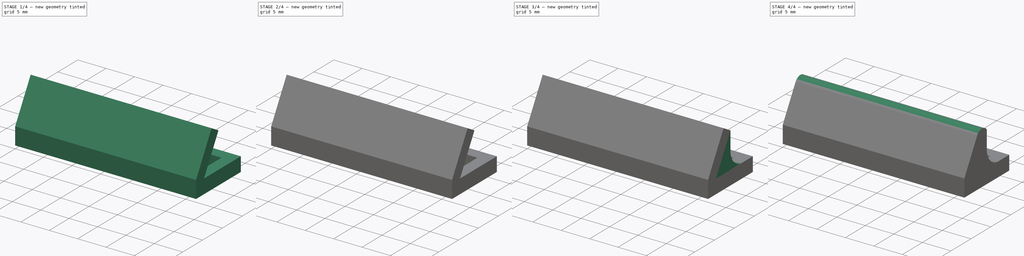
[diagram: build sequence overview — one tinted view per stage of 4, left to right]
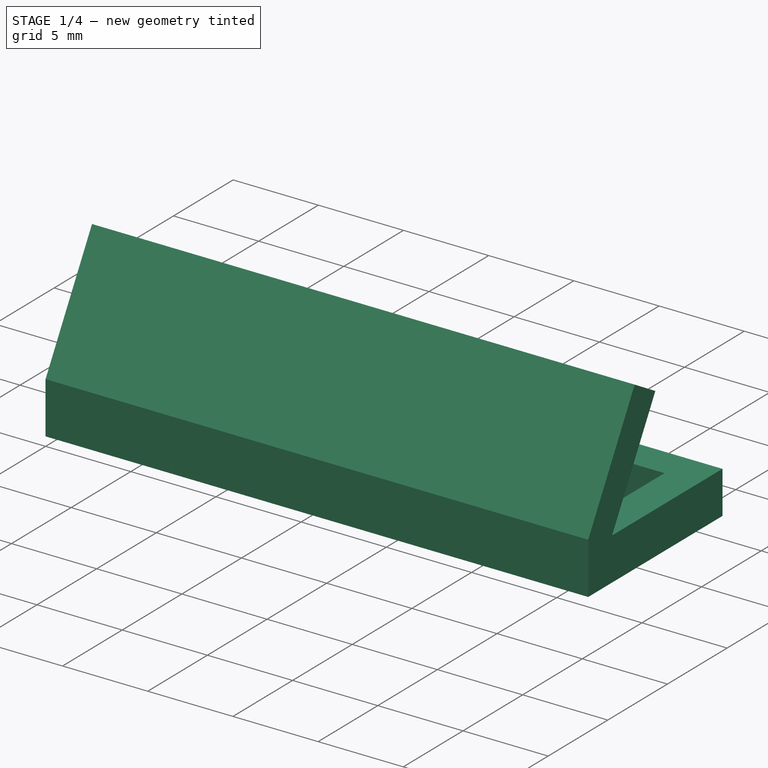
[diagram: stage 1 of 4 — iso view after this stage's code; geometry added in this stage tinted green]
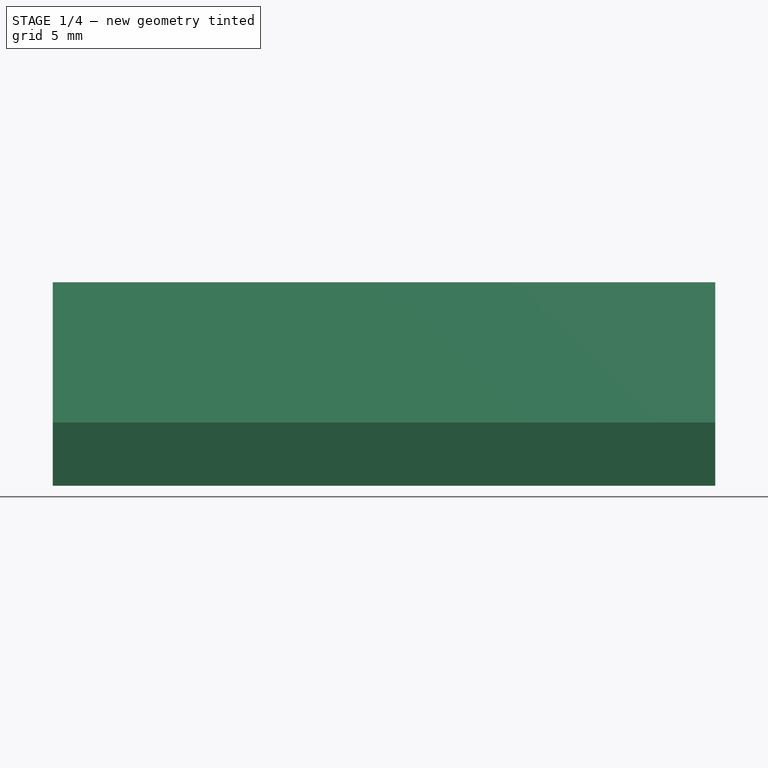
[diagram: stage 1 of 4 — front view after this stage's code; geometry added in this stage tinted green]
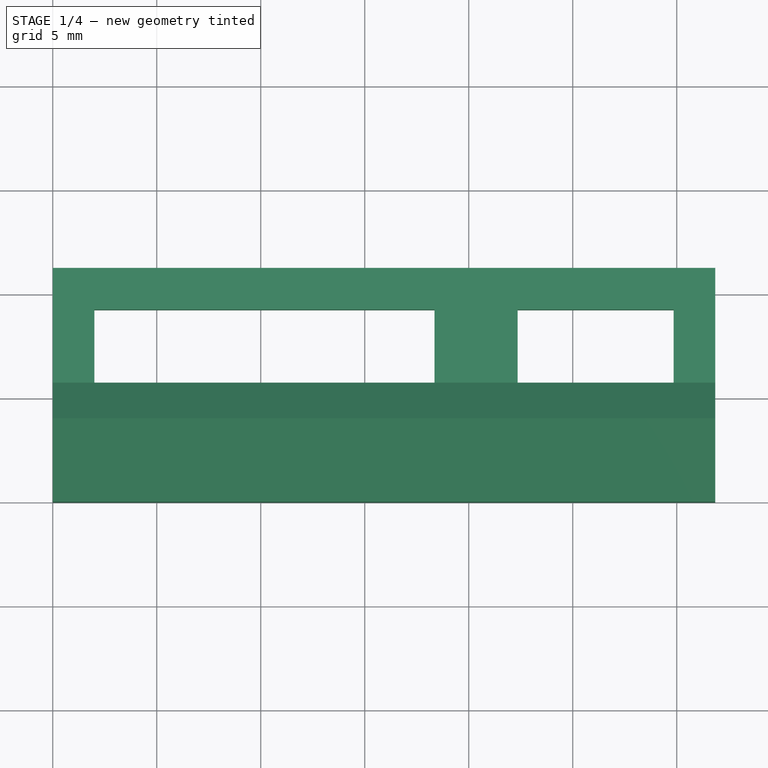
[diagram: stage 1 of 4 — top view after this stage's code; geometry added in this stage tinted green]
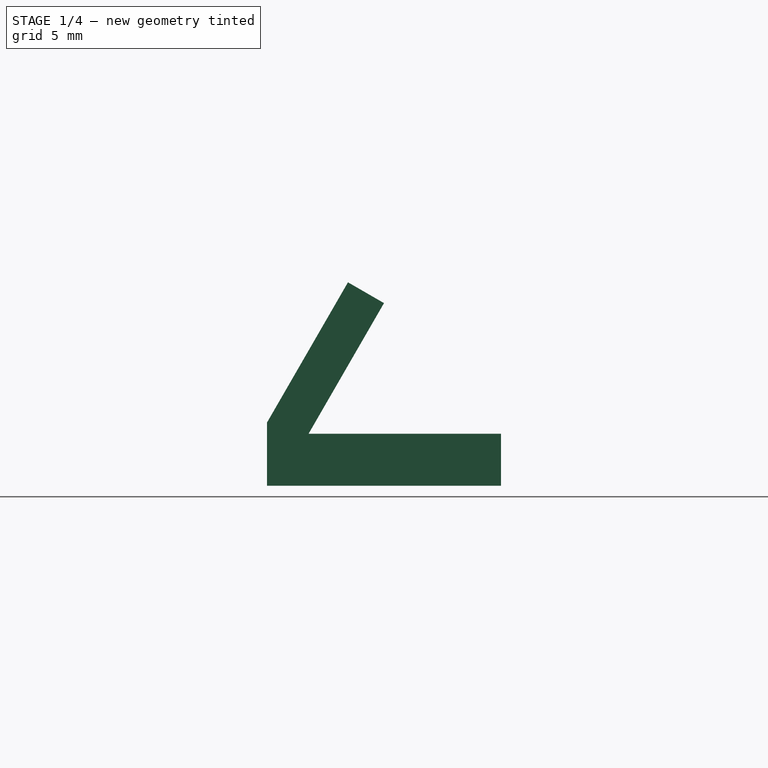
[diagram: stage 1 of 4 — right view after this stage's code; geometry added in this stage tinted green]
FCSTD DOCUMENT  (FreeCAD 0.17R13522 (Git))
Label: Visera sensor de distancia
License: All rights reserved
LicenseURL: http://en.wikipedia.org/wiki/All_rights_reserved
objects: Sketcher::SketchObject×5, PartDesign::Pad×5, PartDesign::Fillet×4, Part::Feature×1
note: 20 computed .brp shape members not serialized (recipe doc carries the construction recipe); baked Part::Feature solids carry a one-line shape summary decoded from their .brp

FEATURE [Sketcher::SketchObject] Sketch
  MapMode = 5
  sketch-geometry (18):
    g0: LineSegment StartX=0 StartY=0 StartZ=0 EndX=31.85 EndY=0 EndZ=0
    g1: LineSegment StartX=31.85 StartY=0 StartZ=0 EndX=31.85 EndY=11.25 EndZ=0
    g2: LineSegment StartX=31.85 StartY=11.25 StartZ=0 EndX=0 EndY=11.25 EndZ=0
    g3: LineSegment StartX=0 StartY=11.25 StartZ=0 EndX=0 EndY=0 EndZ=0
    g4: LineSegment StartX=2 StartY=9.25 StartZ=0 EndX=18.35 EndY=9.25 EndZ=0
    g5: LineSegment StartX=18.35 StartY=9.25 StartZ=0 EndX=18.35 EndY=2 EndZ=0
    g6: LineSegment StartX=18.35 StartY=2 StartZ=0 EndX=2 EndY=2 EndZ=0
    g7: LineSegment StartX=2 StartY=2 StartZ=0 EndX=2 EndY=9.25 EndZ=0
    g8: LineSegment StartX=22.35 StartY=9.25 StartZ=0 EndX=29.85 EndY=9.25 EndZ=0
    g9: LineSegment StartX=29.85 StartY=9.25 StartZ=0 EndX=29.85 EndY=2 EndZ=0
    g10: LineSegment StartX=29.85 StartY=2 StartZ=0 EndX=22.35 EndY=2 EndZ=0
    g11: LineSegment StartX=22.35 StartY=2 StartZ=0 EndX=22.35 EndY=9.25 EndZ=0
    g12: LineSegment [constr] StartX=18.35 StartY=9.25 StartZ=0 EndX=22.35 EndY=9.25 EndZ=0
    g13: LineSegment [constr] StartX=18.35 StartY=2 StartZ=0 EndX=22.35 EndY=2 EndZ=0
    g14: LineSegment [constr] StartX=2 StartY=2 StartZ=0 EndX=0 EndY=2 EndZ=0
    g15: LineSegment [constr] StartX=2 StartY=9.25 StartZ=0 EndX=2 EndY=11.25 EndZ=0
    g16: LineSegment [constr] StartX=29.85 StartY=9.25 StartZ=0 EndX=31.85 EndY=9.25 EndZ=0
    g17: LineSegment [constr] StartX=29.85 StartY=2 StartZ=0 EndX=29.85 EndY=0 EndZ=0
  constraints (51):
    c: Coincident(g0,g1)
    c: Coincident(g1,g2)
    c: Coincident(g2,g3)
    c: Coincident(g3,g0)
    c: Horizontal(g0)
    c: Horizontal(g2)
    c: Vertical(g1)
    c: Vertical(g3)
    c: Coincident(g0,g-1)
    c: Coincident(g4,g5)
    c: Coincident(g5,g6)
    c: Coincident(g6,g7)
    c: Coincident(g7,g4)
    c: Horizontal(g4)
    c: Horizontal(g6)
    c: Vertical(g5)
    c: Vertical(g7)
    c: Coincident(g8,g9)
    c: Coincident(g9,g10)
    c: Coincident(g10,g11)
    c: Coincident(g11,g8)
    c: Horizontal(g8)
    c: Horizontal(g10)
    c: Vertical(g9)
    c: Vertical(g11)
    c: Coincident(g12,g4)
    c: Coincident(g12,g8)
    c: Horizontal(g12)
    c: Coincident(g13,g5)
    c: Coincident(g13,g10)
    c: Horizontal(g13)
    c: DistanceX(g12,g12) = 4
    c: DistanceX(g10,g10) = 7.5
    c: DistanceY(g9,g9) = 7.25
    c: DistanceX(g6,g6) = 16.35
    c: Coincident(g14,g6)
    c: PointOnObject(g14,g3)
    c: Horizontal(g14)
    c: Coincident(g15,g4)
    c: PointOnObject(g15,g2)
    c: Vertical(g15)
    c: Coincident(g16,g8)
    c: PointOnObject(g16,g1)
    c: Horizontal(g16)
    c: Coincident(g17,g9)
    c: PointOnObject(g17,g0)
    c: Vertical(g17)
    c: Equal(g15,g14)
    c: Equal(g16,g17)
    c: Equal(g16,g15)
    c: DistanceX(g14,g14) = 2
FEATURE [PartDesign::Pad] Pad
  Length = 2.5
  Length2 = 100
  Profile = -> Sketch
  Type = 0
FEATURE [Sketcher::SketchObject] Sketch001
  ExternalGeometry = -> [Pad]
  MapMode = 5
  Placement = pos=(0,0,0) rot=(0.57735,-0.57735,-0.57735;2.0944rad)
  Support = -> [Pad]
  sketch-geometry (6):
    g0: LineSegment StartX=0 StartY=2.5 StartZ=0 EndX=0 EndY=3.0359 EndZ=0
    g1: LineSegment StartX=-2 StartY=2.5 StartZ=0 EndX=-5.625 EndY=8.77868 EndZ=0
    g2: LineSegment StartX=-5.625 StartY=8.77868 StartZ=0 EndX=-3.89295 EndY=9.77868 EndZ=0
    g3: LineSegment StartX=0 StartY=3.0359 StartZ=0 EndX=-3.89295 EndY=9.77868 EndZ=0
    g4: LineSegment [constr] StartX=-5.625 StartY=8.77868 StartZ=0 EndX=-9.25 EndY=2.5 EndZ=0
    g5: LineSegment StartX=-2 StartY=2.5 StartZ=0 EndX=0 EndY=2.5 EndZ=0
  constraints (15):
    c: Coincident(g0,g-3)
    c: PointOnObject(g0,g-2)
    c: Coincident(g1,g-4)
    c: Coincident(g2,g1)
    c: Coincident(g3,g0)
    c: Coincident(g3,g2)
    c: Parallel(g1,g3)
    c: Distance(g2) = 2
    c: Angle(g1,g-3) = 1.0472
    c: Perpendicular(g1,g2)
    c: Coincident(g4,g1)
    c: Coincident(g4,g-5)
    c: Equal(g4,g1)
    c: Coincident(g5,g1)
    c: Coincident(g5,g0)
FEATURE [PartDesign::Pad] Pad001
  Length = 10
  Length2 = 100
  Profile = -> Sketch001
  Type = 3
  UpToFace = -> Pad [Face2]
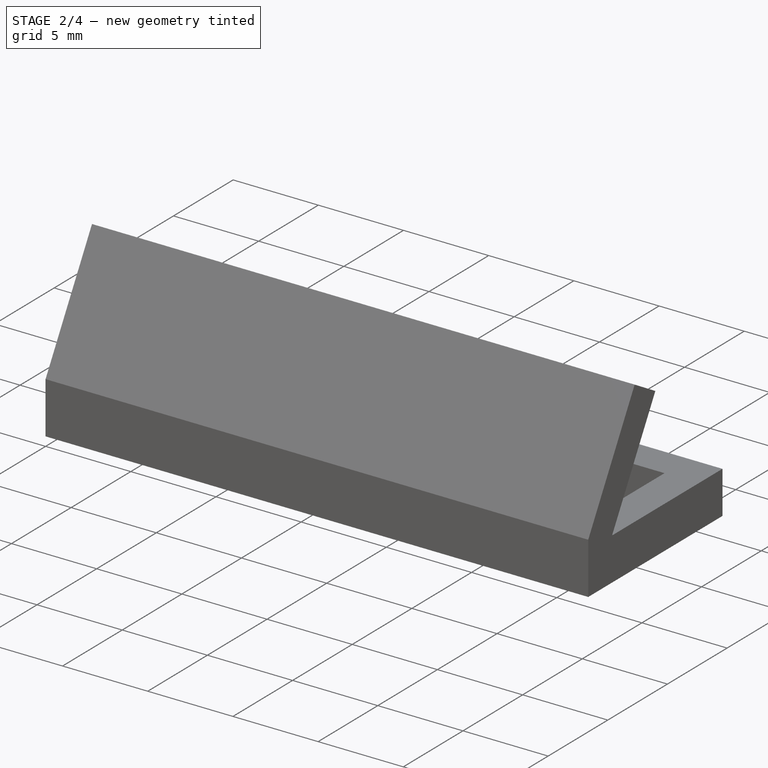
[diagram: stage 2 of 4 — iso view after this stage's code; geometry added in this stage tinted green]
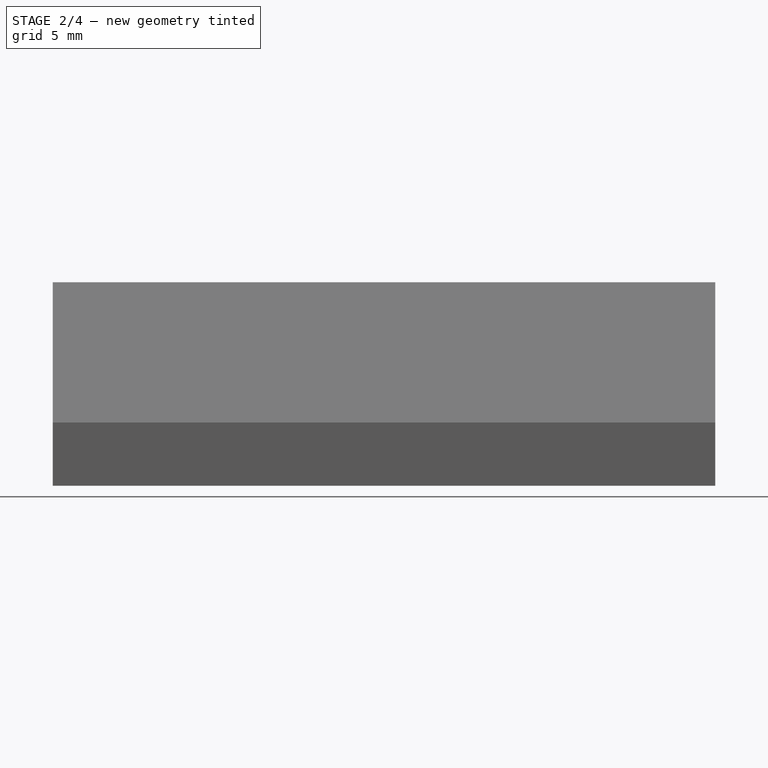
[diagram: stage 2 of 4 — front view after this stage's code; geometry added in this stage tinted green]
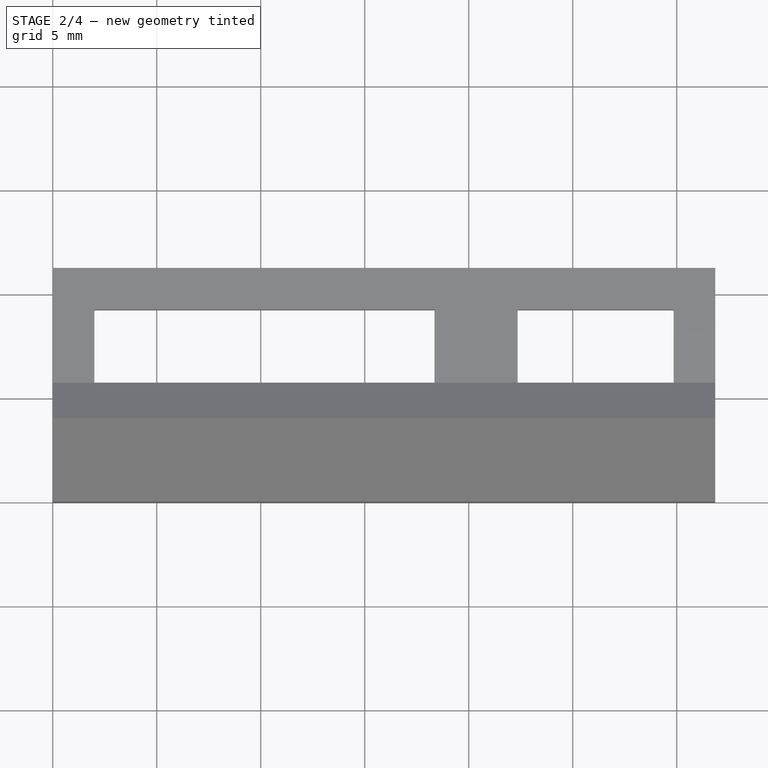
[diagram: stage 2 of 4 — top view after this stage's code; geometry added in this stage tinted green]
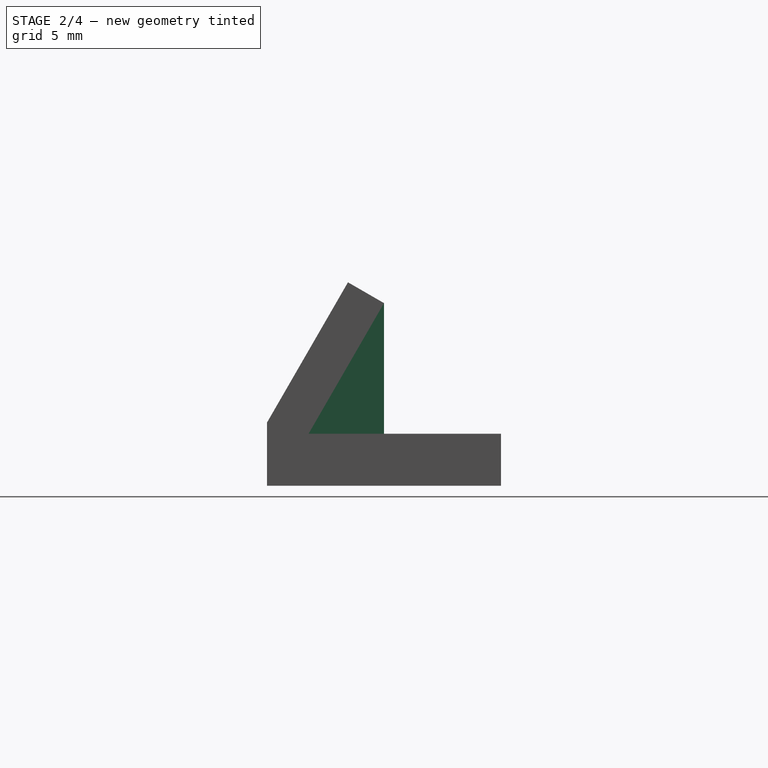
[diagram: stage 2 of 4 — right view after this stage's code; geometry added in this stage tinted green]
FEATURE [Sketcher::SketchObject] Sketch002
  ExternalGeometry = -> [Pad001]
  MapMode = 5
  Placement = pos=(0,0,0) rot=(0.57735,-0.57735,-0.57735;2.0944rad)
  Support = -> [Pad001]
  sketch-geometry (3):
    g0: LineSegment StartX=-5.625 StartY=8.77868 StartZ=0 EndX=-5.625 EndY=2.5 EndZ=0
    g1: LineSegment StartX=-5.625 StartY=8.77868 StartZ=0 EndX=-2 EndY=2.5 EndZ=0
    g2: LineSegment StartX=-2 StartY=2.5 StartZ=0 EndX=-5.625 EndY=2.5 EndZ=0
  constraints (7):
    c: Coincident(g0,g-3)
    c: PointOnObject(g0,g-4)
    c: Vertical(g0)
    c: Coincident(g1,g0)
    c: Coincident(g1,g-4)
    c: Coincident(g2,g1)
    c: Coincident(g2,g0)
FEATURE [PartDesign::Pad] Pad002
  Length = 10
  Length2 = 100
  Profile = -> Sketch002
  Type = 3
  UpToFace = -> Pad001 [Face9]
FEATURE [Sketcher::SketchObject] Sketch003
  ExternalGeometry = -> [Pad002]
  MapMode = 5
  Placement = pos=(22.35,0,0) rot=(0.57735,0.57735,0.57735;2.0944rad)
  Support = -> [Pad002]
  sketch-geometry (3):
    g0: LineSegment StartX=2 StartY=2.5 StartZ=0 EndX=5.625 EndY=2.5 EndZ=0
    g1: LineSegment StartX=5.625 StartY=2.5 StartZ=0 EndX=5.625 EndY=8.77868 EndZ=0
    g2: LineSegment StartX=5.625 StartY=8.77868 StartZ=0 EndX=2 EndY=2.5 EndZ=0
  constraints (6):
    c: Coincident(g0,g-4)
    c: Coincident(g0,g-5)
    c: Coincident(g1,g0)
    c: Coincident(g1,g-3)
    c: Coincident(g2,g1)
    c: Coincident(g2,g0)
FEATURE [PartDesign::Pad] Pad003
  Length = 10
  Length2 = 100
  Profile = -> Sketch003
  Type = 3
  UpToFace = -> Pad002 [Face7]
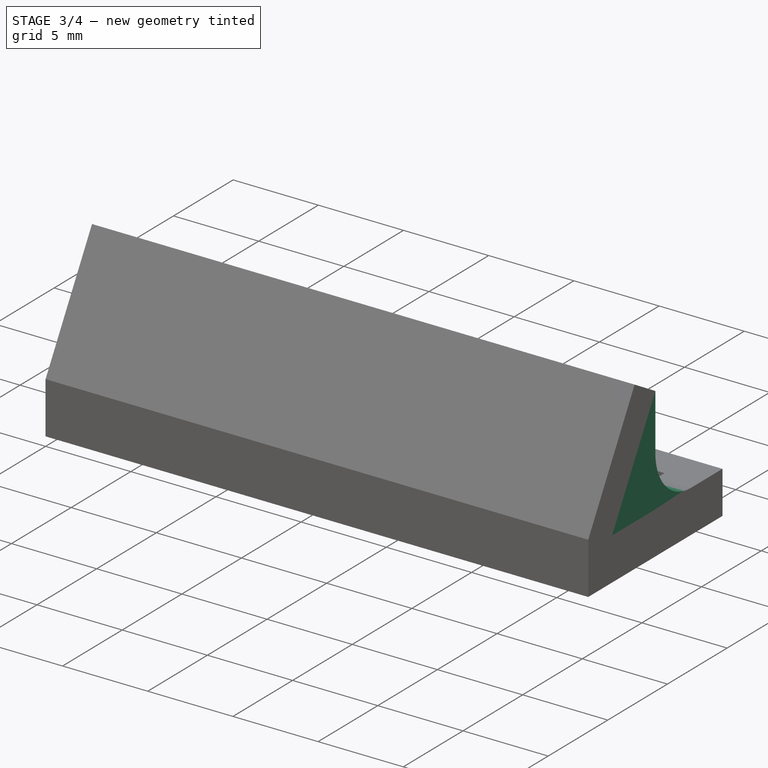
[diagram: stage 3 of 4 — iso view after this stage's code; geometry added in this stage tinted green]
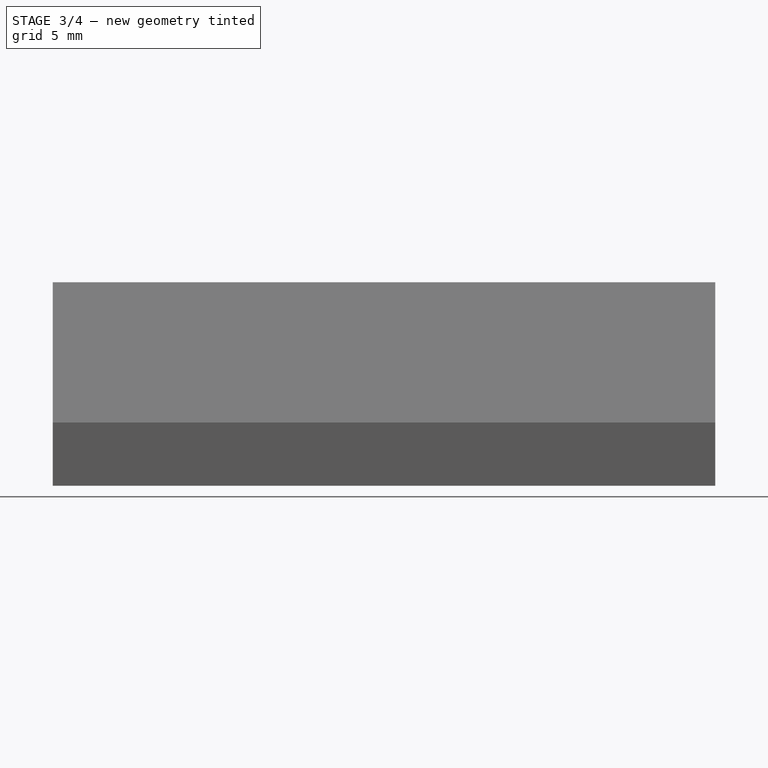
[diagram: stage 3 of 4 — front view after this stage's code; geometry added in this stage tinted green]
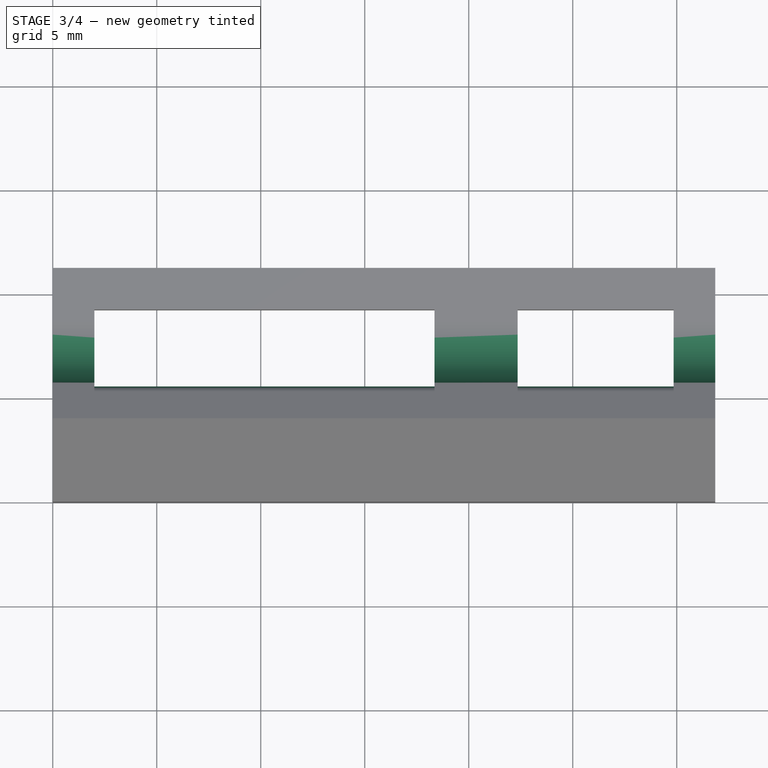
[diagram: stage 3 of 4 — top view after this stage's code; geometry added in this stage tinted green]
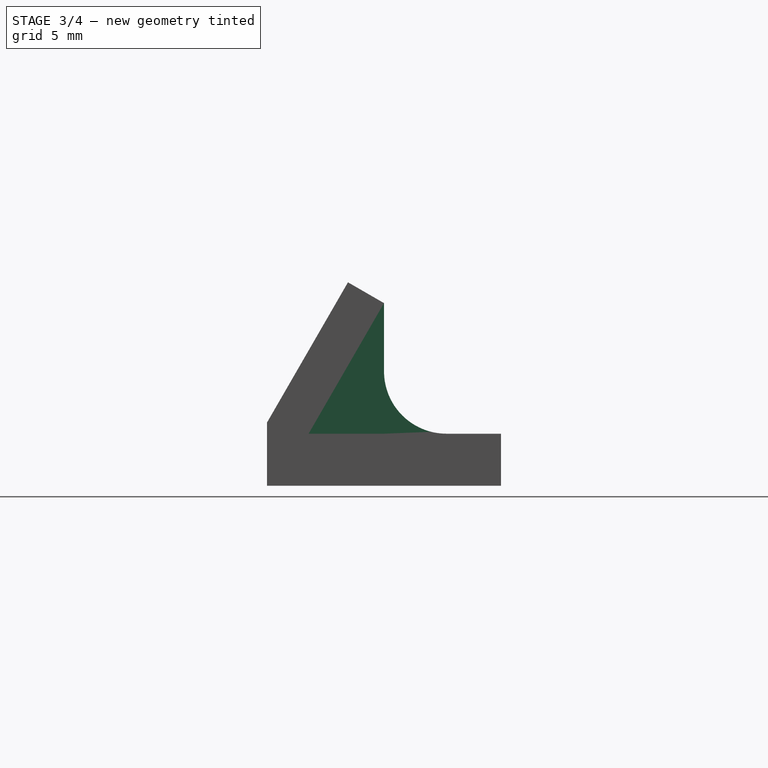
[diagram: stage 3 of 4 — right view after this stage's code; geometry added in this stage tinted green]
FEATURE [Sketcher::SketchObject] Sketch004
  ExternalGeometry = -> [Pad003]
  MapMode = 5
  Placement = pos=(31.85,0,0) rot=(0.57735,0.57735,0.57735;2.0944rad)
  Support = -> [Pad003]
  sketch-geometry (3):
    g0: LineSegment StartX=2 StartY=2.5 StartZ=0 EndX=5.625 EndY=2.5 EndZ=0
    g1: LineSegment StartX=5.625 StartY=2.5 StartZ=0 EndX=5.625 EndY=8.77868 EndZ=0
    g2: LineSegment StartX=5.625 StartY=8.77868 StartZ=0 EndX=2 EndY=2.5 EndZ=0
  constraints (6):
    c: Coincident(g0,g-3)
    c: Coincident(g0,g-4)
    c: Coincident(g1,g0)
    c: Coincident(g1,g-5)
    c: Coincident(g2,g1)
    c: Coincident(g2,g0)
FEATURE [PartDesign::Pad] Pad004
  Length = 10
  Length2 = 100
  Profile = -> Sketch004
  Type = 3
  UpToFace = -> Pad003 [Face11]
FEATURE [PartDesign::Fillet] Fillet
  Base = -> Pad004 [Edge52,Edge53,Edge54]
  Radius = 3
FEATURE [PartDesign::Fillet] Fillet001
  Base = -> Fillet [Edge76,Edge78]
  Radius = 0.5
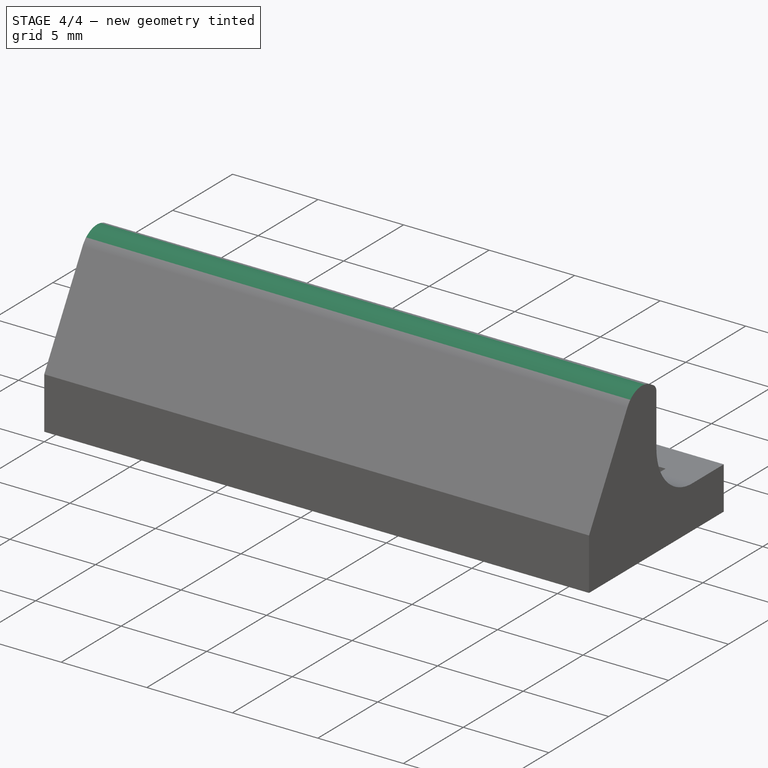
[diagram: stage 4 of 4 — iso view after this stage's code; geometry added in this stage tinted green]
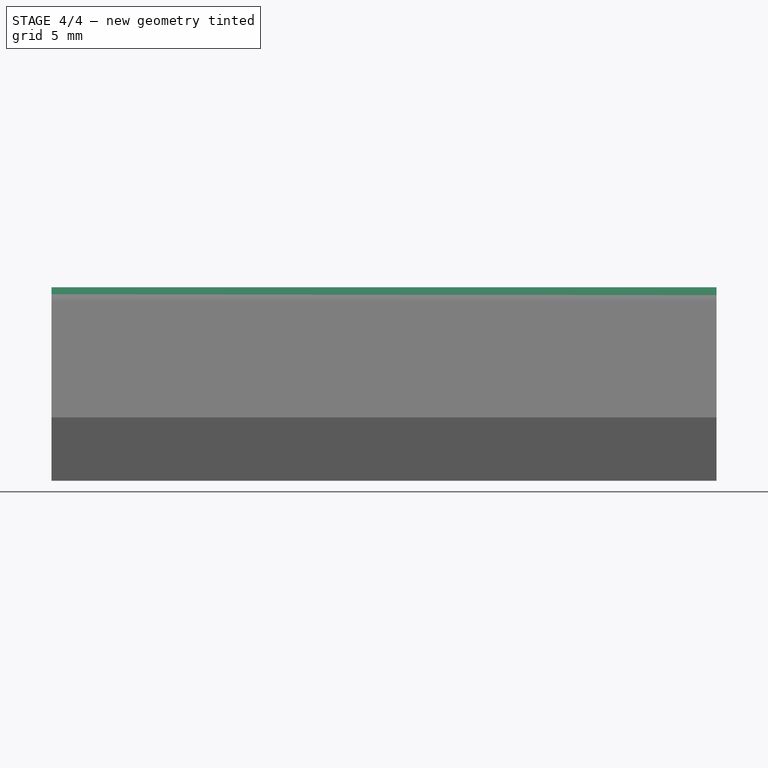
[diagram: stage 4 of 4 — front view after this stage's code; geometry added in this stage tinted green]
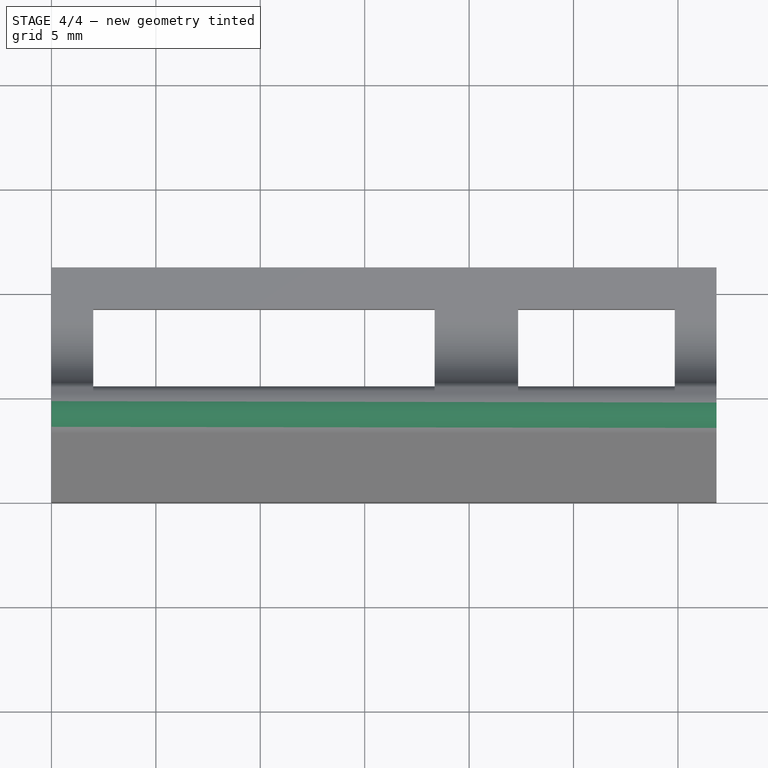
[diagram: stage 4 of 4 — top view after this stage's code; geometry added in this stage tinted green]
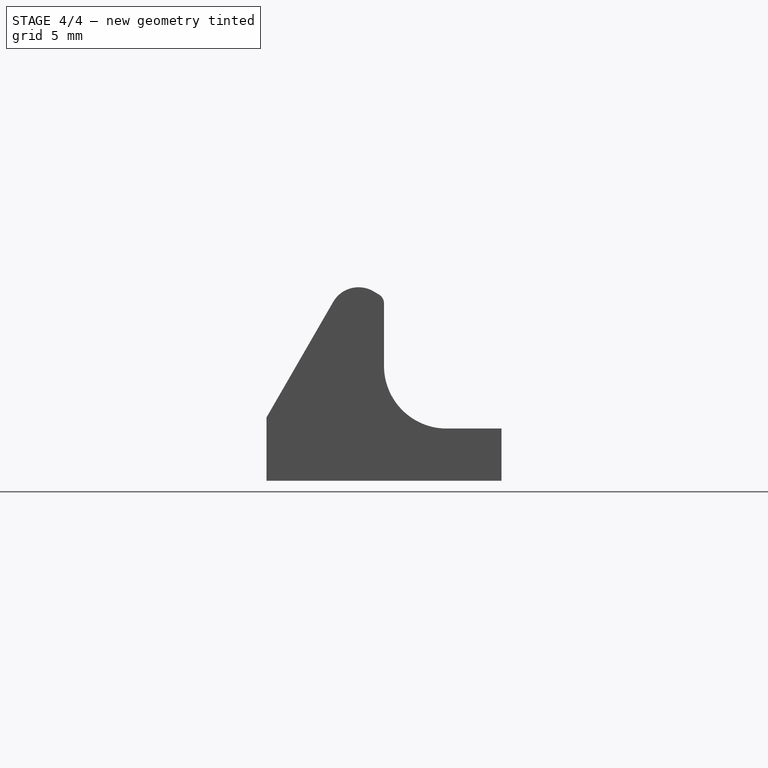
[diagram: stage 4 of 4 — right view after this stage's code; geometry added in this stage tinted green]
FEATURE [PartDesign::Fillet] Fillet002
  Base = -> Fillet001 [Edge2,Edge7,Edge10]
  Radius = 0.5
FEATURE [PartDesign::Fillet] Fillet003
  Base = -> Fillet002 [Edge6]
  Radius = 1.4
FEATURE [Part::Feature] Fillet003001  label="Fillet004"
  shape: bbox 31.85 x 11.25 x 9.266 mm, 30 faces (baked)
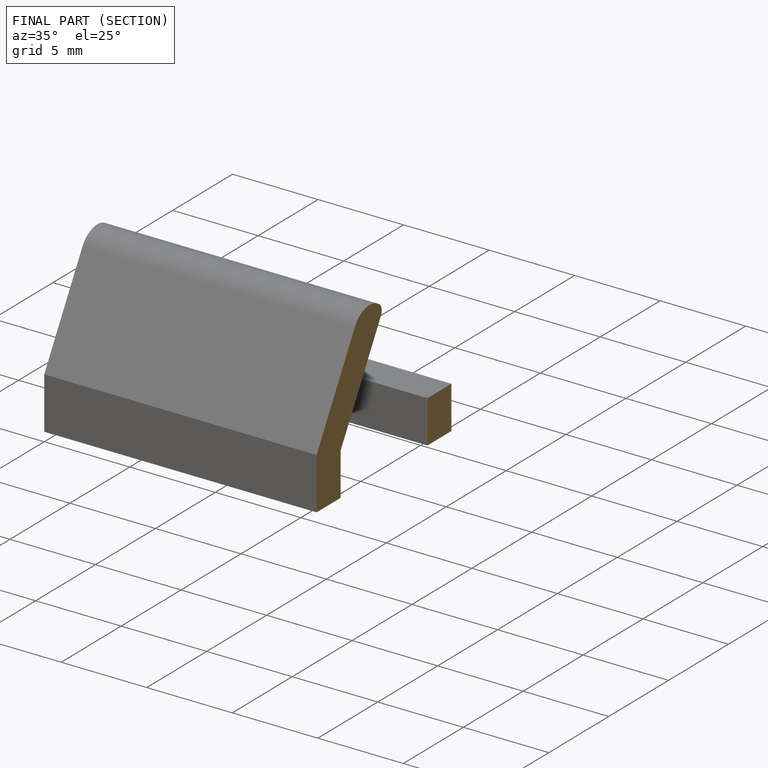
[diagram: finished part — half-section view (interior)]
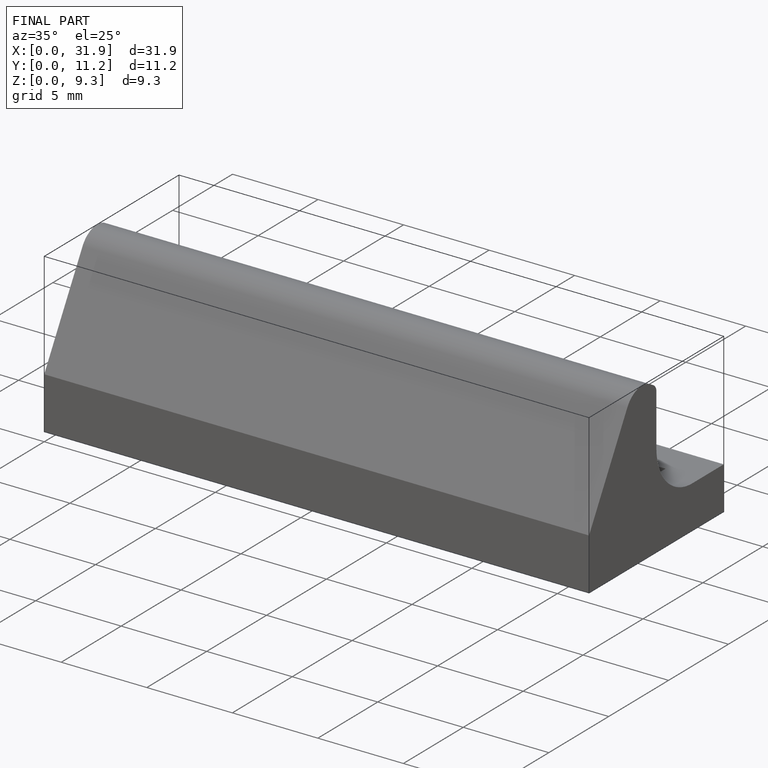
[diagram: finished part — iso view with bounding-box wireframe]
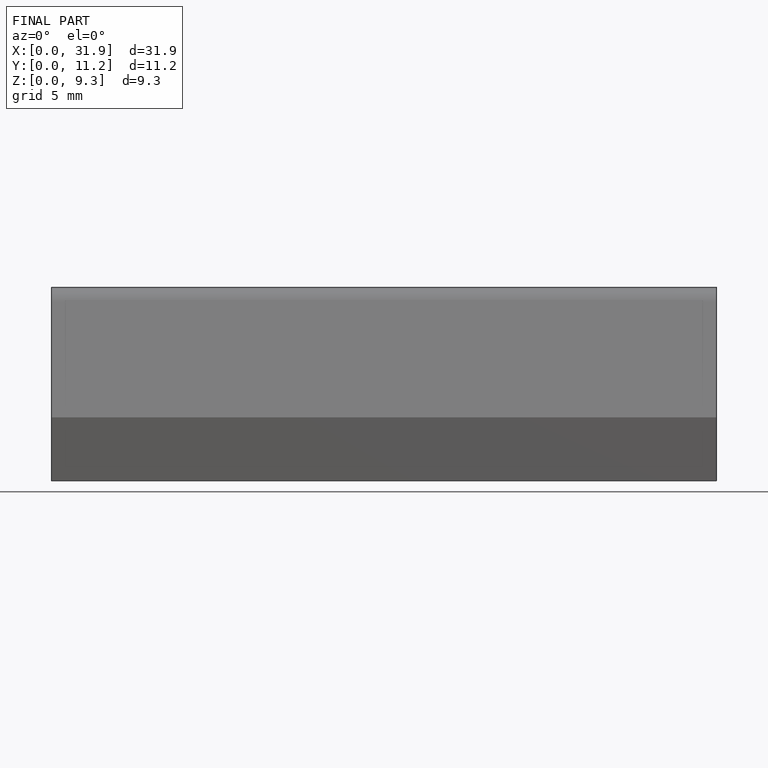
[diagram: finished part — front view with bounding-box wireframe]
